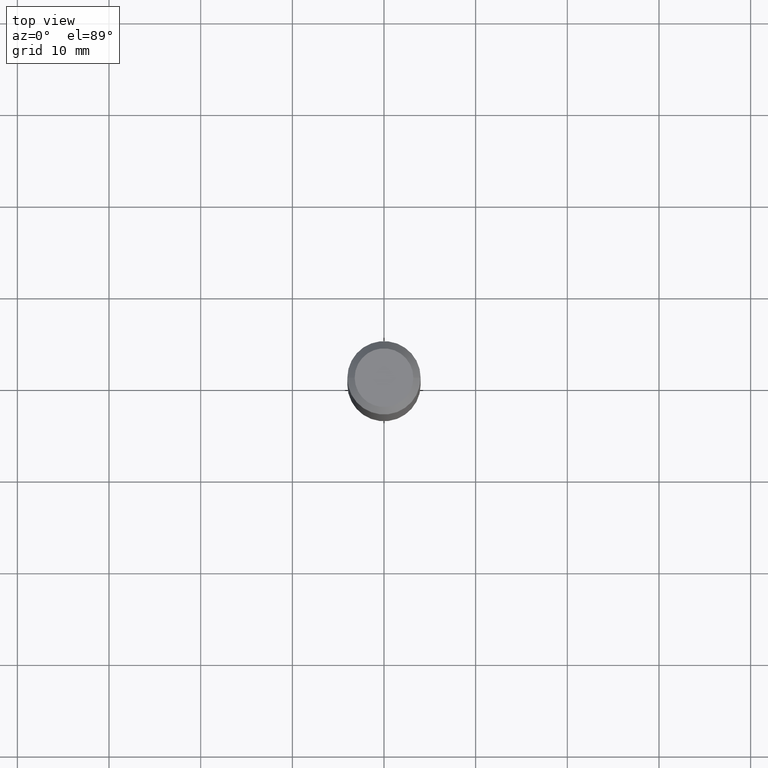
[diagram: clean part render]
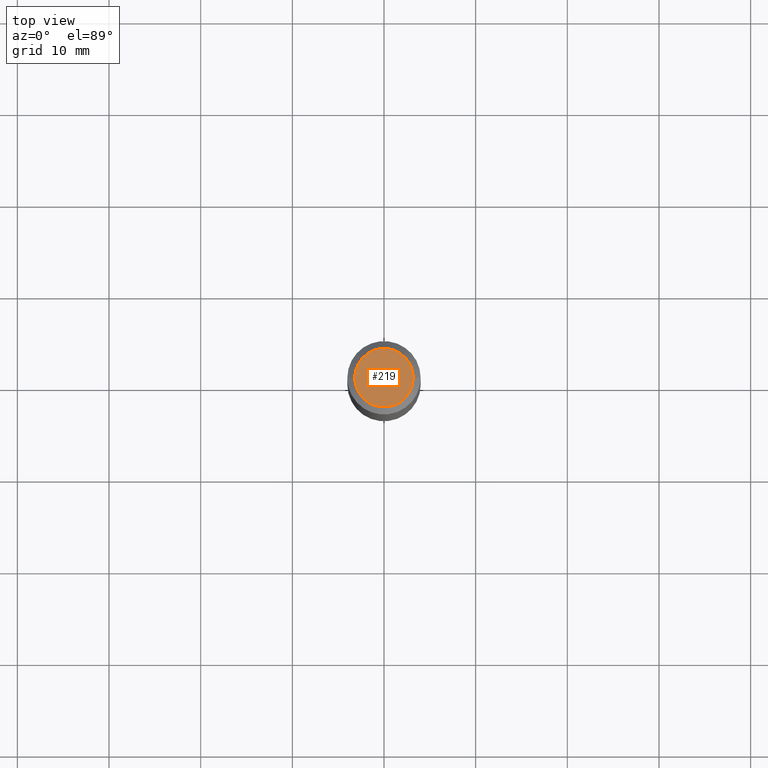
[diagram: same view with one face highlighted and labeled with its STEP entity id]
A machine part, top view. The second image highlights one B-rep face of the part: STEP entity #219.
In plain terms, the highlighted planar face has unit normal (0, -0, -1).
Its self-contained STEP definition (entity closure, byte-faithful):
#9 = CARTESIAN_POINT ( 'NONE',  ( 0.1260000000000000009, -1.027466422270894443E-15, 3.860086710919128072E-18 ) ) ;
#10 = AXIS2_PLACEMENT_3D ( 'NONE', #29, #425, #32 ) ;
#29 = CARTESIAN_POINT ( 'NONE',  ( -9.439721640706201686E-47, 1.347742071746726764E-32, 3.860086710912459732E-18 ) ) ;
#32 = DIRECTION ( 'NONE',  ( 1.000000000000000000, -6.982962677686265922E-15, 4.876281427513067258E-29 ) ) ;
#58 = CARTESIAN_POINT ( 'NONE',  ( -4.719860820353100843E-47, 6.738710358733633822E-33, 1.930043355456229866E-18 ) ) ;
#83 = DIRECTION ( 'NONE',  ( -2.445468806185136597E-29, 3.491481338843145583E-15, 1.000000000000000000 ) ) ;
#99 = ORIENTED_EDGE ( 'NONE', *, *, #361, .T. ) ;
#130 = PLANE ( 'NONE',  #131 ) ;
#131 = AXIS2_PLACEMENT_3D ( 'NONE', #58, #232, #202 ) ;
#170 = EDGE_LOOP ( 'NONE', ( #334, #99 ) ) ;
#188 = EDGE_CURVE ( 'NONE', #465, #309, #437, .T. ) ;
#202 = DIRECTION ( 'NONE',  ( -1.000000000000000000, 6.982962677686265922E-15, -4.876176775795935793E-29 ) ) ;
#219 = ADVANCED_FACE ( 'NONE', ( #482 ), #130, .F. ) ;
#232 = DIRECTION ( 'NONE',  ( 2.438088387897960049E-29, -3.491481338843145188E-15, -1.000000000000000000 ) ) ;
#264 = AXIS2_PLACEMENT_3D ( 'NONE', #383, #83, #348 ) ;
#309 = VERTEX_POINT ( 'NONE', #9 ) ;
#319 = CARTESIAN_POINT ( 'NONE',  ( -0.1260000000000000009, 9.348441284752484904E-16, 3.860086710906114178E-18 ) ) ;
#334 = ORIENTED_EDGE ( 'NONE', *, *, #188, .T. ) ;
#348 = DIRECTION ( 'NONE',  ( 1.000000000000000000, -6.982962677686265922E-15, 4.876281427513067258E-29 ) ) ;
#361 = EDGE_CURVE ( 'NONE', #309, #465, #488, .T. ) ;
#383 = CARTESIAN_POINT ( 'NONE',  ( -9.439721640706201686E-47, 1.347742071746726764E-32, 3.860086710912459732E-18 ) ) ;
#425 = DIRECTION ( 'NONE',  ( -2.445468806185136597E-29, 3.491481338843145583E-15, 1.000000000000000000 ) ) ;
#437 = CIRCLE ( 'NONE', #10, 0.1260000000000000009 ) ;
#465 = VERTEX_POINT ( 'NONE', #319 ) ;
#482 = FACE_OUTER_BOUND ( 'NONE', #170, .T. ) ;
#488 = CIRCLE ( 'NONE', #264, 0.1260000000000000009 ) ;